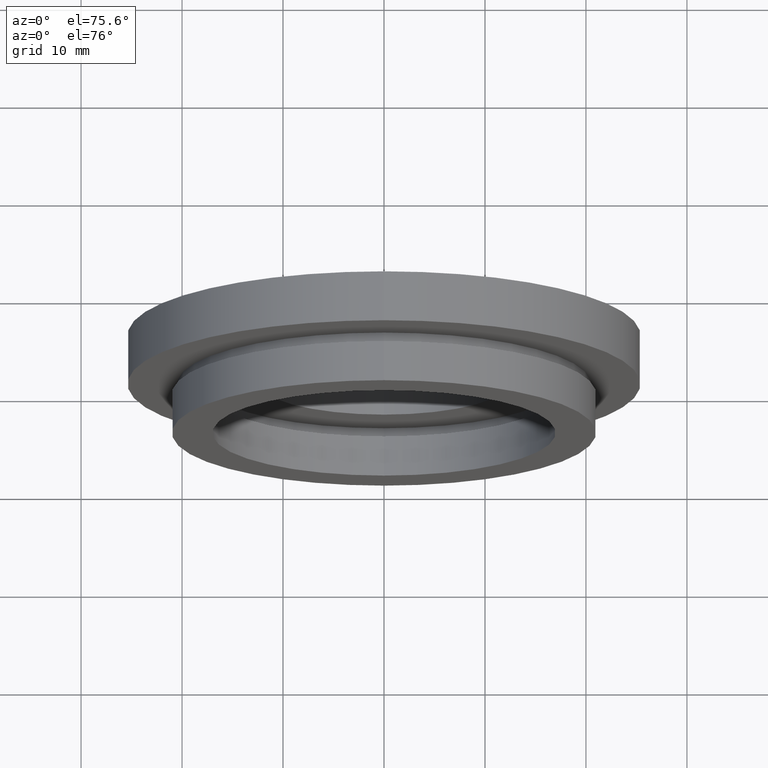
[diagram: clean part render]
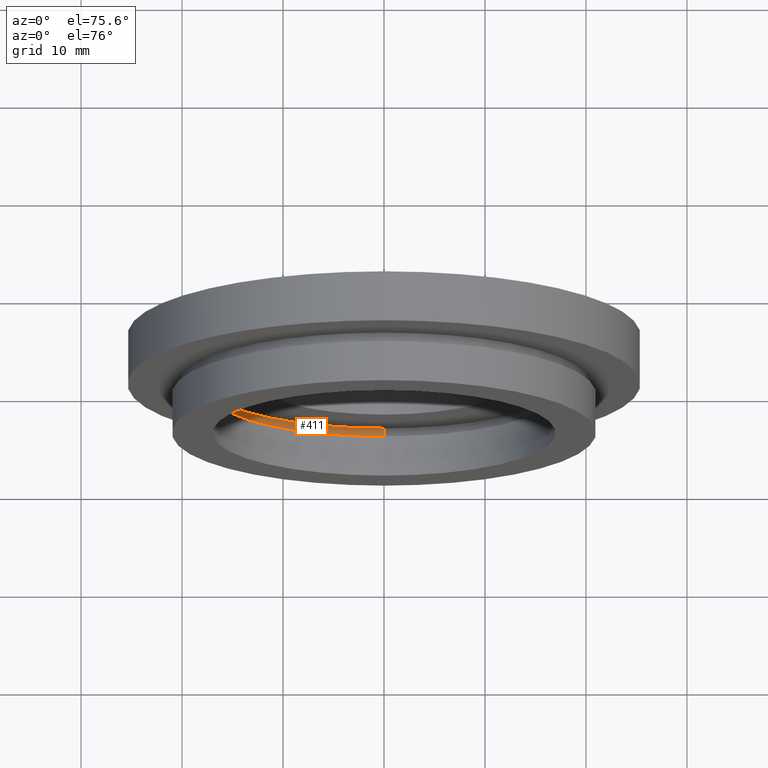
[diagram: same view with one face highlighted and labeled with its STEP entity id]
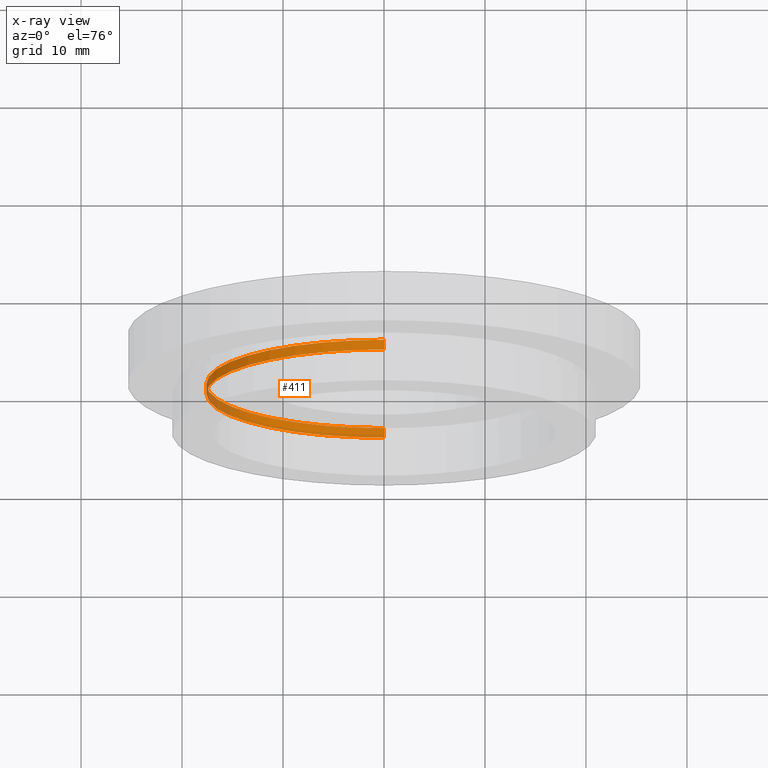
[diagram: x-ray of the same camera — body ghosted, the highlighted face saturated]
A machine part, auxiliary view. The second image highlights one B-rep face of the part: STEP entity #411.
The next image is the same camera in x-ray: the body ghosted, the highlighted face saturated — about 9% of this face is hidden behind the body in this view.
In plain terms, the highlighted cylindrical surface (partial cylindrical patch) has radius 17.6 mm, axis along (-0, 1, -0).
Its self-contained STEP definition (entity closure, byte-faithful):
#26 = VERTEX_POINT ( 'NONE', #355 ) ;
#30 = CIRCLE ( 'NONE', #67, 17.60000000000000100 ) ;
#51 = DIRECTION ( 'NONE',  ( -0.0000000000000000000, 1.000000000000000000, -0.0000000000000000000 ) ) ;
#57 = ORIENTED_EDGE ( 'NONE', *, *, #274, .F. ) ;
#60 = LINE ( 'NONE', #340, #291 ) ;
#67 = AXIS2_PLACEMENT_3D ( 'NONE', #158, #564, #156 ) ;
#125 = ORIENTED_EDGE ( 'NONE', *, *, #447, .T. ) ;
#142 = VECTOR ( 'NONE', #51, 1000.000000000000000 ) ;
#150 = DIRECTION ( 'NONE',  ( -0.0000000000000000000, 1.000000000000000000, -0.0000000000000000000 ) ) ;
#151 = CARTESIAN_POINT ( 'NONE',  ( 0.0000000000000000000, 4.999999999999999100, 0.0000000000000000000 ) ) ;
#156 = DIRECTION ( 'NONE',  ( 0.0000000000000000000, 0.0000000000000000000, 1.000000000000000000 ) ) ;
#157 = FACE_OUTER_BOUND ( 'NONE', #606, .T. ) ;
#158 = CARTESIAN_POINT ( 'NONE',  ( 0.0000000000000000000, 4.000000000000000000, 0.0000000000000000000 ) ) ;
#180 = AXIS2_PLACEMENT_3D ( 'NONE', #151, #225, #228 ) ;
#181 = CARTESIAN_POINT ( 'NONE',  ( 2.155378366499341600E-015, 4.999999999999999100, -17.60000000000000100 ) ) ;
#194 = EDGE_CURVE ( 'NONE', #480, #26, #407, .T. ) ;
#214 = CARTESIAN_POINT ( 'NONE',  ( 2.155378366499341600E-015, 17.41929831819392000, -17.60000000000000100 ) ) ;
#225 = DIRECTION ( 'NONE',  ( -0.0000000000000000000, 1.000000000000000000, -0.0000000000000000000 ) ) ;
#228 = DIRECTION ( 'NONE',  ( 0.0000000000000000000, 0.0000000000000000000, 1.000000000000000000 ) ) ;
#242 = CARTESIAN_POINT ( 'NONE',  ( 0.0000000000000000000, 17.41929831819392000, 0.0000000000000000000 ) ) ;
#250 = DIRECTION ( 'NONE',  ( 0.0000000000000000000, 0.0000000000000000000, 1.000000000000000000 ) ) ;
#268 = ORIENTED_EDGE ( 'NONE', *, *, #410, .F. ) ;
#274 = EDGE_CURVE ( 'NONE', #558, #26, #60, .T. ) ;
#291 = VECTOR ( 'NONE', #150, 1000.000000000000000 ) ;
#340 = CARTESIAN_POINT ( 'NONE',  ( 0.0000000000000000000, 17.41929831819392000, 17.60000000000000100 ) ) ;
#355 = CARTESIAN_POINT ( 'NONE',  ( 0.0000000000000000000, 4.999999999999999100, 17.60000000000000100 ) ) ;
#367 = CYLINDRICAL_SURFACE ( 'NONE', #563, 17.60000000000000100 ) ;
#407 = CIRCLE ( 'NONE', #180, 17.60000000000000100 ) ;
#410 = EDGE_CURVE ( 'NONE', #580, #558, #30, .T. ) ;
#411 = ADVANCED_FACE ( 'NONE', ( #157 ), #367, .F. ) ;
#447 = EDGE_CURVE ( 'NONE', #580, #480, #454, .T. ) ;
#454 = LINE ( 'NONE', #214, #142 ) ;
#480 = VERTEX_POINT ( 'NONE', #181 ) ;
#532 = CARTESIAN_POINT ( 'NONE',  ( 2.155378366499341600E-015, 4.000000000000000000, -17.60000000000000100 ) ) ;
#539 = DIRECTION ( 'NONE',  ( -0.0000000000000000000, 1.000000000000000000, -0.0000000000000000000 ) ) ;
#542 = CARTESIAN_POINT ( 'NONE',  ( 0.0000000000000000000, 4.000000000000000000, 17.60000000000000100 ) ) ;
#558 = VERTEX_POINT ( 'NONE', #542 ) ;
#563 = AXIS2_PLACEMENT_3D ( 'NONE', #242, #539, #250 ) ;
#564 = DIRECTION ( 'NONE',  ( -0.0000000000000000000, 1.000000000000000000, -0.0000000000000000000 ) ) ;
#580 = VERTEX_POINT ( 'NONE', #532 ) ;
#606 = EDGE_LOOP ( 'NONE', ( #268, #125, #623, #57 ) ) ;
#623 = ORIENTED_EDGE ( 'NONE', *, *, #194, .T. ) ;